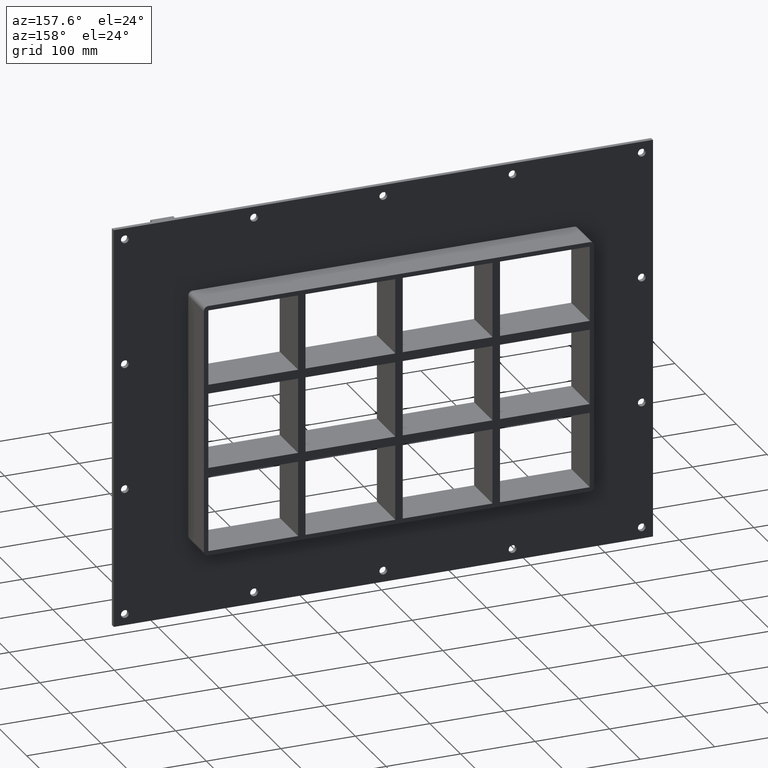
[diagram: clean part render]
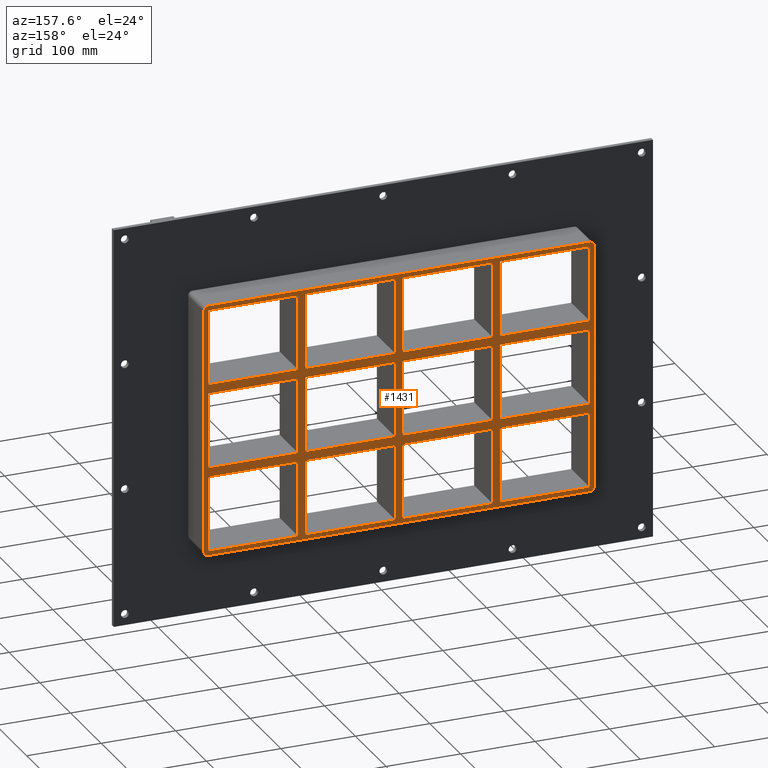
[diagram: same view with one face highlighted and labeled with its STEP entity id]
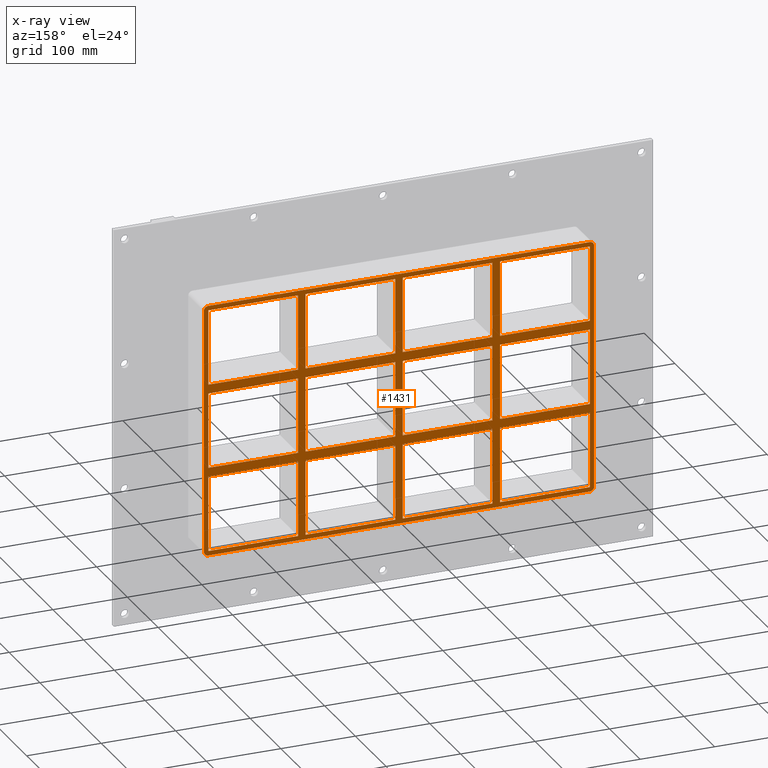
[diagram: x-ray of the same camera — body ghosted, the highlighted face saturated]
A machine part, auxiliary view. The second image highlights one B-rep face of the part: STEP entity #1431.
The next image is the same camera in x-ray: the body ghosted, the highlighted face saturated — about 0% of this face is hidden behind the body in this view.
In plain terms, the highlighted planar face has unit normal (0, 1, 0).
Its self-contained STEP definition (entity closure, byte-faithful):
#467=CARTESIAN_POINT('',(-135.49999999999906,57.0,50.499999999988745));
#468=VERTEX_POINT('',#467);
#483=CARTESIAN_POINT('',(-255.99999999999741,57.0,50.499999999988638));
#484=VERTEX_POINT('',#483);
#491=CARTESIAN_POINT('',(-135.49999999999903,57.0,50.499999999988766));
#492=DIRECTION('',(-1.0,0.0,0.0));
#493=VECTOR('',#492,120.49999999999835);
#494=LINE('',#491,#493);
#495=EDGE_CURVE('',#468,#484,#494,.T.);
#507=CARTESIAN_POINT('',(-4.999999999999041,57.0,50.499999999988887));
#508=VERTEX_POINT('',#507);
#523=CARTESIAN_POINT('',(-125.49999999999272,57.0,50.499999999988759));
#524=VERTEX_POINT('',#523);
#531=CARTESIAN_POINT('',(-4.999999999999034,57.0,50.499999999988894));
#532=DIRECTION('',(-1.0,0.0,0.0));
#533=VECTOR('',#532,120.49999999999369);
#534=LINE('',#531,#533);
#535=EDGE_CURVE('',#508,#524,#534,.T.);
#545=CARTESIAN_POINT('',(135.50000000000728,57.0,50.499999999989029));
#546=VERTEX_POINT('',#545);
#555=CARTESIAN_POINT('',(256.00000000000358,57.0,50.499999999989157));
#556=VERTEX_POINT('',#555);
#557=CARTESIAN_POINT('',(256.00000000000364,57.0,50.499999999989157));
#558=DIRECTION('',(-1.0,0.0,0.0));
#559=VECTOR('',#558,120.49999999999636);
#560=LINE('',#557,#559);
#561=EDGE_CURVE('',#556,#546,#560,.T.);
#587=CARTESIAN_POINT('',(125.50000000000095,57.0,50.499999999989022));
#588=VERTEX_POINT('',#587);
#603=CARTESIAN_POINT('',(5.000000000007283,57.0,50.499999999988901));
#604=VERTEX_POINT('',#603);
#611=CARTESIAN_POINT('',(125.50000000000094,57.0,50.499999999989029));
#612=DIRECTION('',(-1.0,0.0,0.0));
#613=VECTOR('',#612,120.49999999999366);
#614=LINE('',#611,#613);
#615=EDGE_CURVE('',#588,#604,#614,.T.);
#625=CARTESIAN_POINT('',(-135.49999999999906,57.0,62.500000000000462));
#626=VERTEX_POINT('',#625);
#635=CARTESIAN_POINT('',(-255.99999999999741,57.0,62.500000000000462));
#636=VERTEX_POINT('',#635);
#637=CARTESIAN_POINT('',(-255.99999999999741,57.0,62.500000000000462));
#638=DIRECTION('',(1.0,0.0,0.0));
#639=VECTOR('',#638,120.49999999999835);
#640=LINE('',#637,#639);
#641=EDGE_CURVE('',#636,#626,#640,.T.);
#667=CARTESIAN_POINT('',(135.50000000000733,57.0,62.500000000000462));
#668=VERTEX_POINT('',#667);
#683=CARTESIAN_POINT('',(255.9999999999992,57.0,62.500000000000462));
#684=VERTEX_POINT('',#683);
#691=CARTESIAN_POINT('',(135.50000000000736,57.0,62.500000000000462));
#692=DIRECTION('',(1.0,0.0,0.0));
#693=VECTOR('',#692,120.49999999999181);
#694=LINE('',#691,#693);
#695=EDGE_CURVE('',#668,#684,#694,.T.);
#705=CARTESIAN_POINT('',(-4.999999999999041,57.0,62.500000000000462));
#706=VERTEX_POINT('',#705);
#715=CARTESIAN_POINT('',(-125.49999999999272,57.0,62.500000000000462));
#716=VERTEX_POINT('',#715);
#717=CARTESIAN_POINT('',(-125.49999999999272,57.0,62.500000000000462));
#718=DIRECTION('',(1.0,0.0,0.0));
#719=VECTOR('',#718,120.49999999999369);
#720=LINE('',#717,#719);
#721=EDGE_CURVE('',#716,#706,#720,.T.);
#745=CARTESIAN_POINT('',(125.50000000000094,57.0,62.500000000000462));
#746=VERTEX_POINT('',#745);
#755=CARTESIAN_POINT('',(5.000000000007283,57.0,62.500000000000462));
#756=VERTEX_POINT('',#755);
#757=CARTESIAN_POINT('',(5.000000000007304,57.0,62.500000000000462));
#758=DIRECTION('',(1.0,0.0,0.0));
#759=VECTOR('',#758,120.49999999999363);
#760=LINE('',#757,#759);
#761=EDGE_CURVE('',#756,#746,#760,.T.);
#786=CARTESIAN_POINT('',(-256.0,57.0,163.50000000000006));
#787=VERTEX_POINT('',#786);
#788=CARTESIAN_POINT('',(-256.0,57.0,163.50000000000006));
#789=DIRECTION('',(0.0,0.0,-1.0));
#790=VECTOR('',#789,100.99999999999959);
#791=LINE('',#788,#790);
#792=EDGE_CURVE('',#787,#636,#791,.T.);
#817=CARTESIAN_POINT('',(255.9999999999992,57.0,-50.499999999999545));
#818=VERTEX_POINT('',#817);
#819=CARTESIAN_POINT('',(256.0,57.0,-50.499999999999545));
#820=DIRECTION('',(0.0,0.0,1.0));
#821=VECTOR('',#820,100.99999999998869);
#822=LINE('',#819,#821);
#823=EDGE_CURVE('',#818,#556,#822,.T.);
#856=CARTESIAN_POINT('',(256.0,57.0,163.50000000000006));
#857=VERTEX_POINT('',#856);
#864=CARTESIAN_POINT('',(256.0,57.0,62.500000000000455));
#865=DIRECTION('',(0.0,0.0,1.0));
#866=VECTOR('',#865,100.9999999999996);
#867=LINE('',#864,#866);
#868=EDGE_CURVE('',#684,#857,#867,.T.);
#887=CARTESIAN_POINT('',(125.50000000000095,57.0,163.50000000000006));
#888=VERTEX_POINT('',#887);
#895=CARTESIAN_POINT('',(125.50000000000095,57.0,62.500000000000455));
#896=DIRECTION('',(0.0,0.0,1.0));
#897=VECTOR('',#896,100.9999999999996);
#898=LINE('',#895,#897);
#899=EDGE_CURVE('',#746,#888,#898,.T.);
#910=CARTESIAN_POINT('',(135.50000000000728,57.0,163.50000000000006));
#911=VERTEX_POINT('',#910);
#912=CARTESIAN_POINT('',(135.50000000000728,57.0,163.50000000000006));
#913=DIRECTION('',(0.0,0.0,-1.0));
#914=VECTOR('',#913,100.99999999999959);
#915=LINE('',#912,#914);
#916=EDGE_CURVE('',#911,#668,#915,.T.);
#949=CARTESIAN_POINT('',(-4.999999999999059,57.0,163.50000000000006));
#950=VERTEX_POINT('',#949);
#957=CARTESIAN_POINT('',(-4.999999999999053,57.0,62.500000000000455));
#958=DIRECTION('',(0.0,0.0,1.0));
#959=VECTOR('',#958,100.9999999999996);
#960=LINE('',#957,#959);
#961=EDGE_CURVE('',#706,#950,#960,.T.);
#972=CARTESIAN_POINT('',(5.000000000007283,57.0,163.50000000000006));
#973=VERTEX_POINT('',#972);
#974=CARTESIAN_POINT('',(5.000000000007283,57.0,163.50000000000006));
#975=DIRECTION('',(0.0,0.0,-1.0));
#976=VECTOR('',#975,100.99999999999959);
#977=LINE('',#974,#976);
#978=EDGE_CURVE('',#973,#756,#977,.T.);
#1011=CARTESIAN_POINT('',(-135.49999999999906,57.0,163.50000000000006));
#1012=VERTEX_POINT('',#1011);
#1019=CARTESIAN_POINT('',(-135.49999999999903,57.0,62.500000000000455));
#1020=DIRECTION('',(0.0,0.0,1.0));
#1021=VECTOR('',#1020,100.9999999999996);
#1022=LINE('',#1019,#1021);
#1023=EDGE_CURVE('',#626,#1012,#1022,.T.);
#1034=CARTESIAN_POINT('',(-135.49999999999903,57.0,-50.499999999999545));
#1035=VERTEX_POINT('',#1034);
#1036=CARTESIAN_POINT('',(-135.49999999999903,57.0,-50.499999999999545));
#1037=DIRECTION('',(0.0,0.0,1.0));
#1038=VECTOR('',#1037,100.99999999998829);
#1039=LINE('',#1036,#1038);
#1040=EDGE_CURVE('',#1035,#468,#1039,.T.);
#1065=CARTESIAN_POINT('',(-125.49999999999272,57.0,163.50000000000006));
#1066=VERTEX_POINT('',#1065);
#1067=CARTESIAN_POINT('',(-125.49999999999272,57.0,163.50000000000006));
#1068=DIRECTION('',(0.0,0.0,-1.0));
#1069=VECTOR('',#1068,100.99999999999959);
#1070=LINE('',#1067,#1069);
#1071=EDGE_CURVE('',#1066,#716,#1070,.T.);
#1090=CARTESIAN_POINT('',(0.0,57.0,6.916059E-014));
#1091=DIRECTION('',(0.0,1.0,0.0));
#1092=DIRECTION('',(0.0,0.0,1.0));
#1093=AXIS2_PLACEMENT_3D('',#1090,#1091,#1092);
#1094=PLANE('',#1093);
#1095=CARTESIAN_POINT('',(-262.0,57.0,-163.49999999999994));
#1096=VERTEX_POINT('',#1095);
#1097=CARTESIAN_POINT('',(-256.0,57.0,-169.49999999999994));
#1098=VERTEX_POINT('',#1097);
#1099=CARTESIAN_POINT('',(-256.0,57.0,-163.49999999999994));
#1100=DIRECTION('',(0.0,-1.0,0.0));
#1101=DIRECTION('',(-0.707106781186548,0.0,-0.707106781186548));
#1102=AXIS2_PLACEMENT_3D('',#1099,#1100,#1101);
#1103=CIRCLE('',#1102,6.000000000000002);
#1104=EDGE_CURVE('',#1096,#1098,#1103,.T.);
#1105=ORIENTED_EDGE('',*,*,#1104,.F.);
#1106=CARTESIAN_POINT('',(-262.0,57.0,163.50000000000009));
#1107=VERTEX_POINT('',#1106);
#1108=CARTESIAN_POINT('',(-262.0,57.0,-163.49999999999994));
#1109=DIRECTION('',(0.0,0.0,1.0));
#1110=VECTOR('',#1109,327.00000000000006);
#1111=LINE('',#1108,#1110);
#1112=EDGE_CURVE('',#1096,#1107,#1111,.T.);
#1113=ORIENTED_EDGE('',*,*,#1112,.T.);
#1114=CARTESIAN_POINT('',(-256.0,57.0,169.50000000000011));
#1115=VERTEX_POINT('',#1114);
#1116=CARTESIAN_POINT('',(-256.0,57.0,163.50000000000009));
#1117=DIRECTION('',(0.0,-1.0,0.0));
#1118=DIRECTION('',(-0.707106781186548,0.0,0.707106781186548));
#1119=AXIS2_PLACEMENT_3D('',#1116,#1117,#1118);
#1120=CIRCLE('',#1119,6.000000000000002);
#1121=EDGE_CURVE('',#1115,#1107,#1120,.T.);
#1122=ORIENTED_EDGE('',*,*,#1121,.F.);
#1123=CARTESIAN_POINT('',(256.0,57.0,169.50000000000011));
#1124=VERTEX_POINT('',#1123);
#1125=CARTESIAN_POINT('',(-256.0,57.0,169.50000000000011));
#1126=DIRECTION('',(1.0,0.0,0.0));
#1127=VECTOR('',#1126,512.0);
#1128=LINE('',#1125,#1127);
#1129=EDGE_CURVE('',#1115,#1124,#1128,.T.);
#1130=ORIENTED_EDGE('',*,*,#1129,.T.);
#1131=CARTESIAN_POINT('',(262.0,57.0,163.50000000000009));
#1132=VERTEX_POINT('',#1131);
#1133=CARTESIAN_POINT('',(256.0,57.0,163.50000000000009));
#1134=DIRECTION('',(0.0,-1.0,0.0));
#1135=DIRECTION('',(0.707106781186548,0.0,0.707106781186548));
#1136=AXIS2_PLACEMENT_3D('',#1133,#1134,#1135);
#1137=CIRCLE('',#1136,6.000000000000002);
#1138=EDGE_CURVE('',#1132,#1124,#1137,.T.);
#1139=ORIENTED_EDGE('',*,*,#1138,.F.);
#1140=CARTESIAN_POINT('',(262.0,57.0,-163.49999999999994));
#1141=VERTEX_POINT('',#1140);
#1142=CARTESIAN_POINT('',(262.0,57.0,163.50000000000011));
#1143=DIRECTION('',(0.0,0.0,-1.0));
#1144=VECTOR('',#1143,327.00000000000006);
#1145=LINE('',#1142,#1144);
#1146=EDGE_CURVE('',#1132,#1141,#1145,.T.);
#1147=ORIENTED_EDGE('',*,*,#1146,.T.);
#1148=CARTESIAN_POINT('',(256.0,57.0,-169.49999999999994));
#1149=VERTEX_POINT('',#1148);
#1150=CARTESIAN_POINT('',(256.0,57.0,-163.49999999999994));
#1151=DIRECTION('',(0.0,-1.0,0.0));
#1152=DIRECTION('',(0.707106781186548,0.0,-0.707106781186548));
#1153=AXIS2_PLACEMENT_3D('',#1150,#1151,#1152);
#1154=CIRCLE('',#1153,6.000000000000002);
#1155=EDGE_CURVE('',#1149,#1141,#1154,.T.);
#1156=ORIENTED_EDGE('',*,*,#1155,.F.);
#1157=CARTESIAN_POINT('',(256.0,57.0,-169.49999999999994));
#1158=DIRECTION('',(-1.0,0.0,0.0));
#1159=VECTOR('',#1158,512.0);
#1160=LINE('',#1157,#1159);
#1161=EDGE_CURVE('',#1149,#1098,#1160,.T.);
#1162=ORIENTED_EDGE('',*,*,#1161,.T.);
#1163=EDGE_LOOP('',(#1105,#1113,#1122,#1130,#1139,#1147,#1156,#1162));
#1164=FACE_OUTER_BOUND('',#1163,.T.);
#1165=CARTESIAN_POINT('',(-255.99999999999741,57.0,-50.499999999999545));
#1166=VERTEX_POINT('',#1165);
#1167=CARTESIAN_POINT('',(-256.0,57.0,50.499999999988646));
#1168=DIRECTION('',(0.0,0.0,-1.0));
#1169=VECTOR('',#1168,100.99999999998819);
#1170=LINE('',#1167,#1169);
#1171=EDGE_CURVE('',#484,#1166,#1170,.T.);
#1172=ORIENTED_EDGE('',*,*,#1171,.T.);
#1173=CARTESIAN_POINT('',(-255.99999999999741,57.0,-50.499999999999545));
#1174=DIRECTION('',(1.0,0.0,0.0));
#1175=VECTOR('',#1174,120.49999999999838);
#1176=LINE('',#1173,#1175);
#1177=EDGE_CURVE('',#1166,#1035,#1176,.T.);
#1178=ORIENTED_EDGE('',*,*,#1177,.T.);
#1179=ORIENTED_EDGE('',*,*,#1040,.T.);
#1180=ORIENTED_EDGE('',*,*,#495,.T.);
#1181=EDGE_LOOP('',(#1172,#1178,#1179,#1180));
#1182=FACE_BOUND('',#1181,.T.);
#1183=ORIENTED_EDGE('',*,*,#868,.T.);
#1184=CARTESIAN_POINT('',(256.00000000000006,57.0,163.50000000000006));
#1185=DIRECTION('',(-1.0,0.0,0.0));
#1186=VECTOR('',#1185,120.49999999999278);
#1187=LINE('',#1184,#1186);
#1188=EDGE_CURVE('',#857,#911,#1187,.T.);
#1189=ORIENTED_EDGE('',*,*,#1188,.T.);
#1190=ORIENTED_EDGE('',*,*,#916,.T.);
#1191=ORIENTED_EDGE('',*,*,#695,.T.);
#1192=EDGE_LOOP('',(#1183,#1189,#1190,#1191));
#1193=FACE_BOUND('',#1192,.T.);
#1194=ORIENTED_EDGE('',*,*,#899,.T.);
#1195=CARTESIAN_POINT('',(125.50000000000094,57.0,163.50000000000006));
#1196=DIRECTION('',(-1.0,0.0,0.0));
#1197=VECTOR('',#1196,120.49999999999366);
#1198=LINE('',#1195,#1197);
#1199=EDGE_CURVE('',#888,#973,#1198,.T.);
#1200=ORIENTED_EDGE('',*,*,#1199,.T.);
#1201=ORIENTED_EDGE('',*,*,#978,.T.);
#1202=ORIENTED_EDGE('',*,*,#761,.T.);
#1203=EDGE_LOOP('',(#1194,#1200,#1201,#1202));
#1204=FACE_BOUND('',#1203,.T.);
#1205=ORIENTED_EDGE('',*,*,#961,.T.);
#1206=CARTESIAN_POINT('',(-4.999999999999048,57.0,163.50000000000006));
#1207=DIRECTION('',(-1.0,0.0,0.0));
#1208=VECTOR('',#1207,120.49999999999368);
#1209=LINE('',#1206,#1208);
#1210=EDGE_CURVE('',#950,#1066,#1209,.T.);
#1211=ORIENTED_EDGE('',*,*,#1210,.T.);
#1212=ORIENTED_EDGE('',*,*,#1071,.T.);
#1213=ORIENTED_EDGE('',*,*,#721,.T.);
#1214=EDGE_LOOP('',(#1205,#1211,#1212,#1213));
#1215=FACE_BOUND('',#1214,.T.);
#1216=ORIENTED_EDGE('',*,*,#561,.T.);
#1217=CARTESIAN_POINT('',(135.50000000000728,57.0,-50.499999999999545));
#1218=VERTEX_POINT('',#1217);
#1219=CARTESIAN_POINT('',(135.50000000000728,57.0,50.499999999989029));
#1220=DIRECTION('',(0.0,0.0,-1.0));
#1221=VECTOR('',#1220,100.99999999998857);
#1222=LINE('',#1219,#1221);
#1223=EDGE_CURVE('',#546,#1218,#1222,.T.);
#1224=ORIENTED_EDGE('',*,*,#1223,.T.);
#1225=CARTESIAN_POINT('',(135.50000000000736,57.0,-50.499999999999545));
#1226=DIRECTION('',(1.0,0.0,0.0));
#1227=VECTOR('',#1226,120.49999999999181);
#1228=LINE('',#1225,#1227);
#1229=EDGE_CURVE('',#1218,#818,#1228,.T.);
#1230=ORIENTED_EDGE('',*,*,#1229,.T.);
#1231=ORIENTED_EDGE('',*,*,#823,.T.);
#1232=EDGE_LOOP('',(#1216,#1224,#1230,#1231));
#1233=FACE_BOUND('',#1232,.T.);
#1234=ORIENTED_EDGE('',*,*,#615,.T.);
#1235=CARTESIAN_POINT('',(5.000000000007283,57.0,-50.499999999999545));
#1236=VERTEX_POINT('',#1235);
#1237=CARTESIAN_POINT('',(5.000000000007283,57.0,50.499999999988916));
#1238=DIRECTION('',(0.0,0.0,-1.0));
#1239=VECTOR('',#1238,100.99999999998846);
#1240=LINE('',#1237,#1239);
#1241=EDGE_CURVE('',#604,#1236,#1240,.T.);
#1242=ORIENTED_EDGE('',*,*,#1241,.T.);
#1243=CARTESIAN_POINT('',(125.50000000000097,57.0,-50.499999999999545));
#1244=VERTEX_POINT('',#1243);
#1245=CARTESIAN_POINT('',(5.000000000007304,57.0,-50.499999999999545));
#1246=DIRECTION('',(1.0,0.0,0.0));
#1247=VECTOR('',#1246,120.49999999999363);
#1248=LINE('',#1245,#1247);
#1249=EDGE_CURVE('',#1236,#1244,#1248,.T.);
#1250=ORIENTED_EDGE('',*,*,#1249,.T.);
#1251=CARTESIAN_POINT('',(125.50000000000097,57.0,-50.499999999999545));
#1252=DIRECTION('',(0.0,0.0,1.0));
#1253=VECTOR('',#1252,100.99999999998857);
#1254=LINE('',#1251,#1253);
#1255=EDGE_CURVE('',#1244,#588,#1254,.T.);
#1256=ORIENTED_EDGE('',*,*,#1255,.T.);
#1257=EDGE_LOOP('',(#1234,#1242,#1250,#1256));
#1258=FACE_BOUND('',#1257,.T.);
#1259=ORIENTED_EDGE('',*,*,#535,.T.);
#1260=CARTESIAN_POINT('',(-125.49999999999272,57.0,-50.499999999999545));
#1261=VERTEX_POINT('',#1260);
#1262=CARTESIAN_POINT('',(-125.49999999999272,57.0,50.499999999988773));
#1263=DIRECTION('',(0.0,0.0,-1.0));
#1264=VECTOR('',#1263,100.99999999998832);
#1265=LINE('',#1262,#1264);
#1266=EDGE_CURVE('',#524,#1261,#1265,.T.);
#1267=ORIENTED_EDGE('',*,*,#1266,.T.);
#1268=CARTESIAN_POINT('',(-4.999999999999047,57.0,-50.499999999999545));
#1269=VERTEX_POINT('',#1268);
#1270=CARTESIAN_POINT('',(-125.49999999999272,57.0,-50.499999999999545));
#1271=DIRECTION('',(1.0,0.0,0.0));
#1272=VECTOR('',#1271,120.49999999999369);
#1273=LINE('',#1270,#1272);
#1274=EDGE_CURVE('',#1261,#1269,#1273,.T.);
#1275=ORIENTED_EDGE('',*,*,#1274,.T.);
#1276=CARTESIAN_POINT('',(-4.999999999999047,57.0,-50.499999999999545));
#1277=DIRECTION('',(0.0,0.0,1.0));
#1278=VECTOR('',#1277,100.99999999998843);
#1279=LINE('',#1276,#1278);
#1280=EDGE_CURVE('',#1269,#508,#1279,.T.);
#1281=ORIENTED_EDGE('',*,*,#1280,.T.);
#1282=EDGE_LOOP('',(#1259,#1267,#1275,#1281));
#1283=FACE_BOUND('',#1282,.T.);
#1284=CARTESIAN_POINT('',(-255.99999999999741,57.0,-62.500000000011369));
#1285=VERTEX_POINT('',#1284);
#1286=CARTESIAN_POINT('',(-256.0,57.0,-163.50000000000006));
#1287=VERTEX_POINT('',#1286);
#1288=CARTESIAN_POINT('',(-256.0,57.0,-62.500000000011369));
#1289=DIRECTION('',(0.0,0.0,-1.0));
#1290=VECTOR('',#1289,100.99999999998869);
#1291=LINE('',#1288,#1290);
#1292=EDGE_CURVE('',#1285,#1287,#1291,.T.);
#1293=ORIENTED_EDGE('',*,*,#1292,.T.);
#1294=CARTESIAN_POINT('',(-135.49999999999903,57.0,-163.50000000000006));
#1295=VERTEX_POINT('',#1294);
#1296=CARTESIAN_POINT('',(-256.00000000000006,57.0,-163.50000000000006));
#1297=DIRECTION('',(1.0,0.0,0.0));
#1298=VECTOR('',#1297,120.50000000000102);
#1299=LINE('',#1296,#1298);
#1300=EDGE_CURVE('',#1287,#1295,#1299,.T.);
#1301=ORIENTED_EDGE('',*,*,#1300,.T.);
#1302=CARTESIAN_POINT('',(-135.49999999999903,57.0,-62.500000000011241));
#1303=VERTEX_POINT('',#1302);
#1304=CARTESIAN_POINT('',(-135.49999999999903,57.0,-163.50000000000006));
#1305=DIRECTION('',(0.0,0.0,1.0));
#1306=VECTOR('',#1305,100.9999999999888);
#1307=LINE('',#1304,#1306);
#1308=EDGE_CURVE('',#1295,#1303,#1307,.T.);
#1309=ORIENTED_EDGE('',*,*,#1308,.T.);
#1310=CARTESIAN_POINT('',(-135.49999999999903,57.0,-62.500000000011248));
#1311=DIRECTION('',(-1.0,0.0,0.0));
#1312=VECTOR('',#1311,120.49999999999835);
#1313=LINE('',#1310,#1312);
#1314=EDGE_CURVE('',#1303,#1285,#1313,.T.);
#1315=ORIENTED_EDGE('',*,*,#1314,.T.);
#1316=EDGE_LOOP('',(#1293,#1301,#1309,#1315));
#1317=FACE_BOUND('',#1316,.T.);
#1318=CARTESIAN_POINT('',(-4.999999999999041,57.0,-163.50000000000006));
#1319=VERTEX_POINT('',#1318);
#1320=CARTESIAN_POINT('',(-4.999999999999046,57.0,-62.50000000001112));
#1321=VERTEX_POINT('',#1320);
#1322=CARTESIAN_POINT('',(-4.999999999999041,57.0,-163.50000000000006));
#1323=DIRECTION('',(0.0,0.0,1.0));
#1324=VECTOR('',#1323,100.99999999998893);
#1325=LINE('',#1322,#1324);
#1326=EDGE_CURVE('',#1319,#1321,#1325,.T.);
#1327=ORIENTED_EDGE('',*,*,#1326,.T.);
#1328=CARTESIAN_POINT('',(-125.49999999999272,57.0,-62.500000000011234));
#1329=VERTEX_POINT('',#1328);
#1330=CARTESIAN_POINT('',(-4.999999999999034,57.0,-62.50000000001112));
#1331=DIRECTION('',(-1.0,0.0,0.0));
#1332=VECTOR('',#1331,120.49999999999369);
#1333=LINE('',#1330,#1332);
#1334=EDGE_CURVE('',#1321,#1329,#1333,.T.);
#1335=ORIENTED_EDGE('',*,*,#1334,.T.);
#1336=CARTESIAN_POINT('',(-125.49999999999272,57.0,-163.49999999998178));
#1337=VERTEX_POINT('',#1336);
#1338=CARTESIAN_POINT('',(-125.49999999999272,57.0,-62.500000000011227));
#1339=DIRECTION('',(0.0,0.0,-1.0));
#1340=VECTOR('',#1339,100.99999999997053);
#1341=LINE('',#1338,#1340);
#1342=EDGE_CURVE('',#1329,#1337,#1341,.T.);
#1343=ORIENTED_EDGE('',*,*,#1342,.T.);
#1344=CARTESIAN_POINT('',(-125.49999999999272,57.0,-163.50000000000006));
#1345=DIRECTION('',(1.0,0.0,0.0));
#1346=VECTOR('',#1345,120.49999999999369);
#1347=LINE('',#1344,#1346);
#1348=EDGE_CURVE('',#1337,#1319,#1347,.T.);
#1349=ORIENTED_EDGE('',*,*,#1348,.T.);
#1350=EDGE_LOOP('',(#1327,#1335,#1343,#1349));
#1351=FACE_BOUND('',#1350,.T.);
#1352=CARTESIAN_POINT('',(125.50000000000097,57.0,-163.50000000000006));
#1353=VERTEX_POINT('',#1352);
#1354=CARTESIAN_POINT('',(125.50000000000097,57.0,-62.500000000010978));
#1355=VERTEX_POINT('',#1354);
#1356=CARTESIAN_POINT('',(125.50000000000097,57.0,-163.50000000000006));
#1357=DIRECTION('',(0.0,0.0,1.0));
#1358=VECTOR('',#1357,100.99999999998907);
#1359=LINE('',#1356,#1358);
#1360=EDGE_CURVE('',#1353,#1355,#1359,.T.);
#1361=ORIENTED_EDGE('',*,*,#1360,.T.);
#1362=CARTESIAN_POINT('',(5.000000000007283,57.0,-62.500000000011084));
#1363=VERTEX_POINT('',#1362);
#1364=CARTESIAN_POINT('',(125.50000000000097,57.0,-62.500000000010985));
#1365=DIRECTION('',(-1.0,0.0,0.0));
#1366=VECTOR('',#1365,120.49999999999369);
#1367=LINE('',#1364,#1366);
#1368=EDGE_CURVE('',#1355,#1363,#1367,.T.);
#1369=ORIENTED_EDGE('',*,*,#1368,.T.);
#1370=CARTESIAN_POINT('',(5.000000000007283,57.0,-163.49999999998178));
#1371=VERTEX_POINT('',#1370);
#1372=CARTESIAN_POINT('',(5.000000000007283,57.0,-62.500000000011084));
#1373=DIRECTION('',(0.0,0.0,-1.0));
#1374=VECTOR('',#1373,100.99999999997067);
#1375=LINE('',#1372,#1374);
#1376=EDGE_CURVE('',#1363,#1371,#1375,.T.);
#1377=ORIENTED_EDGE('',*,*,#1376,.T.);
#1378=CARTESIAN_POINT('',(5.000000000007276,57.0,-163.50000000000006));
#1379=DIRECTION('',(1.0,0.0,0.0));
#1380=VECTOR('',#1379,120.49999999999369);
#1381=LINE('',#1378,#1380);
#1382=EDGE_CURVE('',#1371,#1353,#1381,.T.);
#1383=ORIENTED_EDGE('',*,*,#1382,.T.);
#1384=EDGE_LOOP('',(#1361,#1369,#1377,#1383));
#1385=FACE_BOUND('',#1384,.T.);
#1386=ORIENTED_EDGE('',*,*,#641,.T.);
#1387=ORIENTED_EDGE('',*,*,#1023,.T.);
#1388=CARTESIAN_POINT('',(-135.49999999999906,57.0,163.50000000000006));
#1389=DIRECTION('',(-1.0,0.0,0.0));
#1390=VECTOR('',#1389,120.50000000000094);
#1391=LINE('',#1388,#1390);
#1392=EDGE_CURVE('',#1012,#787,#1391,.T.);
#1393=ORIENTED_EDGE('',*,*,#1392,.T.);
#1394=ORIENTED_EDGE('',*,*,#792,.T.);
#1395=EDGE_LOOP('',(#1386,#1387,#1393,#1394));
#1396=FACE_BOUND('',#1395,.T.);
#1397=CARTESIAN_POINT('',(135.50000000000728,57.0,-163.49999999998178));
#1398=VERTEX_POINT('',#1397);
#1399=CARTESIAN_POINT('',(256.0,57.0,-163.50000000000006));
#1400=VERTEX_POINT('',#1399);
#1401=CARTESIAN_POINT('',(135.50000000000728,57.0,-163.50000000000006));
#1402=DIRECTION('',(1.0,0.0,0.0));
#1403=VECTOR('',#1402,120.49999999999272);
#1404=LINE('',#1401,#1403);
#1405=EDGE_CURVE('',#1398,#1400,#1404,.T.);
#1406=ORIENTED_EDGE('',*,*,#1405,.T.);
#1407=CARTESIAN_POINT('',(256.00000000000358,57.0,-62.500000000010857));
#1408=VERTEX_POINT('',#1407);
#1409=CARTESIAN_POINT('',(256.0,57.0,-163.50000000000006));
#1410=DIRECTION('',(0.0,0.0,1.0));
#1411=VECTOR('',#1410,100.9999999999892);
#1412=LINE('',#1409,#1411);
#1413=EDGE_CURVE('',#1400,#1408,#1412,.T.);
#1414=ORIENTED_EDGE('',*,*,#1413,.T.);
#1415=CARTESIAN_POINT('',(135.50000000000728,57.0,-62.500000000010942));
#1416=VERTEX_POINT('',#1415);
#1417=CARTESIAN_POINT('',(256.00000000000364,57.0,-62.500000000010857));
#1418=DIRECTION('',(-1.0,0.0,0.0));
#1419=VECTOR('',#1418,120.49999999999636);
#1420=LINE('',#1417,#1419);
#1421=EDGE_CURVE('',#1408,#1416,#1420,.T.);
#1422=ORIENTED_EDGE('',*,*,#1421,.T.);
#1423=CARTESIAN_POINT('',(135.50000000000728,57.0,-62.500000000010942));
#1424=DIRECTION('',(0.0,0.0,-1.0));
#1425=VECTOR('',#1424,100.99999999997081);
#1426=LINE('',#1423,#1425);
#1427=EDGE_CURVE('',#1416,#1398,#1426,.T.);
#1428=ORIENTED_EDGE('',*,*,#1427,.T.);
#1429=EDGE_LOOP('',(#1406,#1414,#1422,#1428));
#1430=FACE_BOUND('',#1429,.T.);
#1431=ADVANCED_FACE('',(#1164,#1182,#1193,#1204,#1215,#1233,#1258,#1283,#1317,#1351,#1385,#1396,#1430),#1094,.T.);